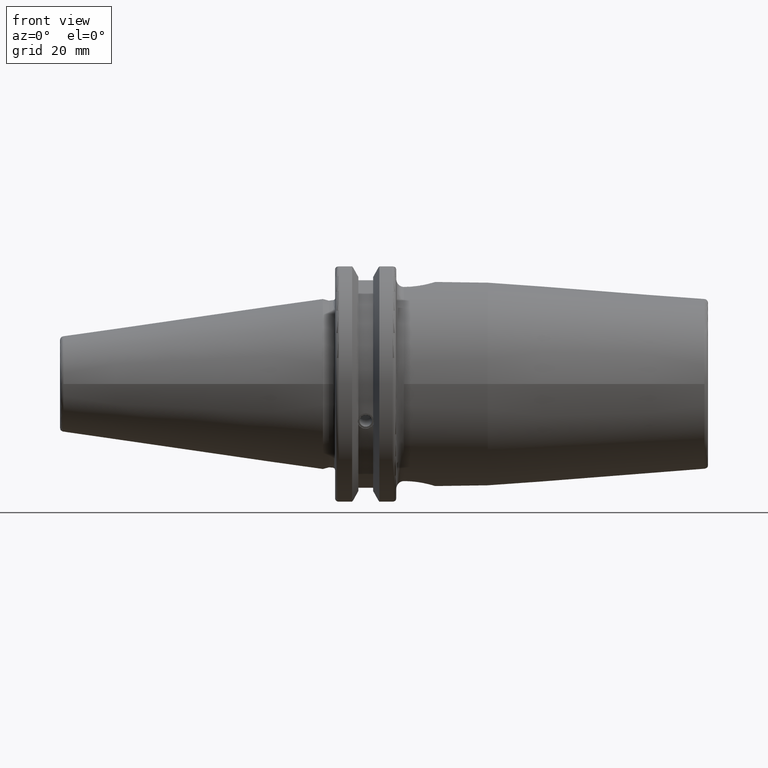
[diagram: clean part render]
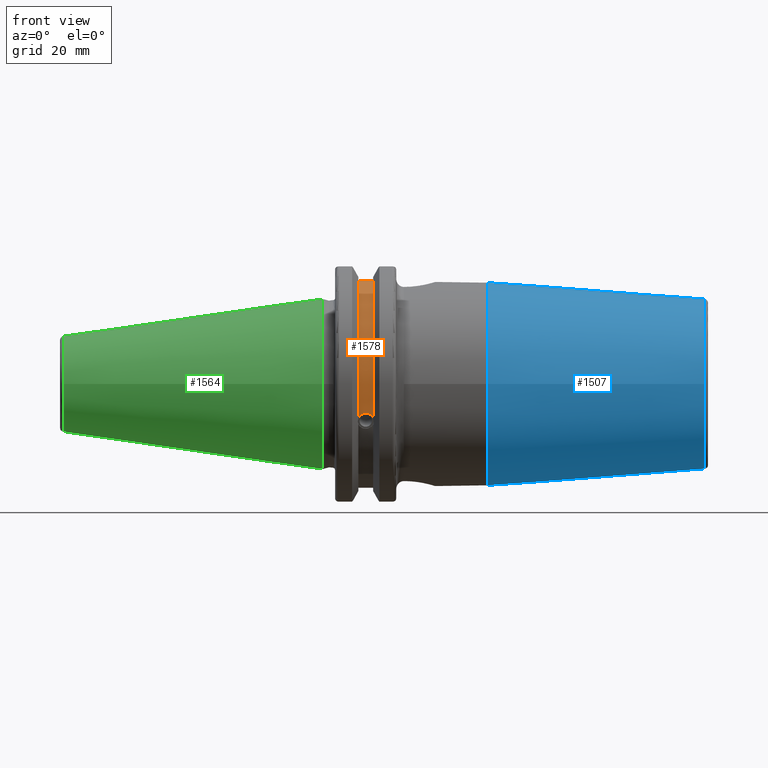
[diagram: same view with three faces highlighted in distinct colors, each labeled with its STEP entity id]
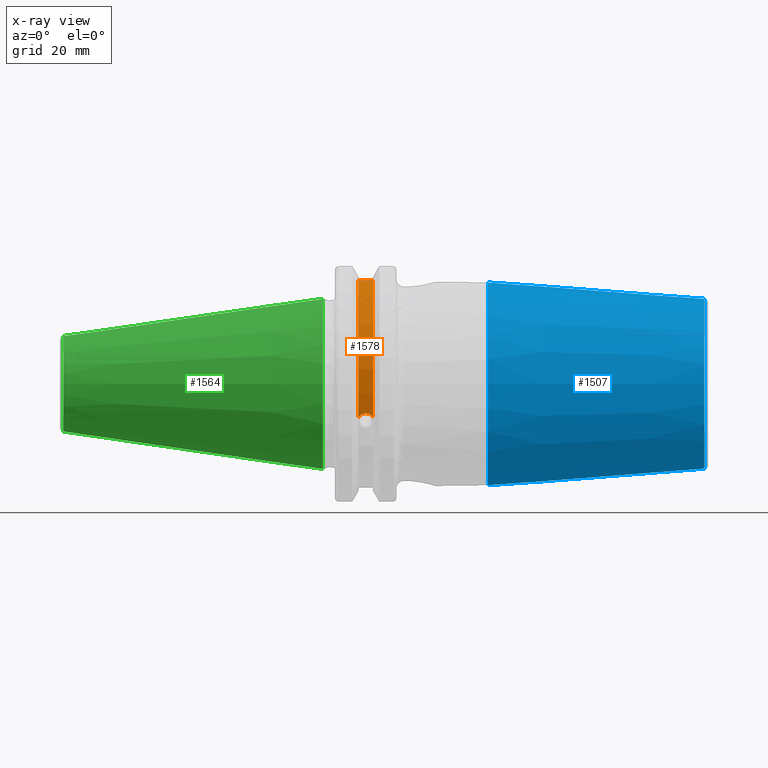
[diagram: x-ray of the same camera — body ghosted, the three highlighted faces saturated]
A machine part, front view with three faces highlighted in distinct colors.
The next image is the same camera in x-ray (body ghosted, the three faces saturated) — at least one of them is partly hidden behind the body in this view.
Their STEP definitions:

[orange] entity #1578 — the highlighted cylindrical surface (partial cylindrical patch) has radius 28.15 mm, axis along (1, 0, 0).
#196=FACE_OUTER_BOUND('',#296,.T.);
#296=EDGE_LOOP('',(#1419,#1420,#1421,#1422));
#379=CIRCLE('',#1777,28.15);
#380=CIRCLE('',#1778,28.15);
#446=LINE('',#2957,#532);
#532=VECTOR('',#2110,10.);
#574=B_SPLINE_CURVE_WITH_KNOTS('',3,(#2552,#2553,#2554,#2555,#2556,#2557,
#2558,#2559,#2560,#2561,#2562,#2563,#2564,#2565),.UNSPECIFIED.,.F.,.F.,
(4,2,2,2,2,2,4),(0.401639126382403,0.474814416953736,0.553950208498303,
0.63308600004287,0.712221791587437,0.791357583132004,0.864532873703336),
 .UNSPECIFIED.);
#651=VERTEX_POINT('',#2549);
#652=VERTEX_POINT('',#2551);
#731=VERTEX_POINT('',#2954);
#732=VERTEX_POINT('',#2956);
#828=EDGE_CURVE('',#652,#651,#574,.T.);
#939=EDGE_CURVE('',#732,#731,#446,.T.);
#986=EDGE_CURVE('',#732,#651,#379,.T.);
#987=EDGE_CURVE('',#731,#652,#380,.T.);
#1419=ORIENTED_EDGE('',*,*,#828,.T.);
#1420=ORIENTED_EDGE('',*,*,#986,.F.);
#1421=ORIENTED_EDGE('',*,*,#939,.T.);
#1422=ORIENTED_EDGE('',*,*,#987,.T.);
#1500=CYLINDRICAL_SURFACE('',#1776,28.15);
#1578=ADVANCED_FACE('',(#196),#1500,.T.);
#1776=AXIS2_PLACEMENT_3D('',#3097,#2206,#2207);
#1777=AXIS2_PLACEMENT_3D('',#3098,#2208,#2209);
#1778=AXIS2_PLACEMENT_3D('',#3099,#2210,#2211);
#2110=DIRECTION('',(-1.,0.,0.));
#2206=DIRECTION('center_axis',(1.,0.,0.));
#2207=DIRECTION('ref_axis',(0.,-0.887654187951484,0.46051063246378));
#2208=DIRECTION('center_axis',(1.,0.,0.));
#2209=DIRECTION('ref_axis',(0.,0.,-1.));
#2210=DIRECTION('center_axis',(1.,0.,0.));
#2211=DIRECTION('ref_axis',(0.,0.,-1.));
#2549=CARTESIAN_POINT('',(13.0491,-26.734714844398,-8.81348524641211));
#2551=CARTESIAN_POINT('',(9.2191,-26.734714844398,-8.81348524641212));
#2552=CARTESIAN_POINT('Ctrl Pts',(9.2191,-26.734714844398,-8.81348524641212));
#2553=CARTESIAN_POINT('Ctrl Pts',(9.32533057097183,-26.8086519721597,-8.58920529678291));
#2554=CARTESIAN_POINT('Ctrl Pts',(9.47682013770509,-26.8729987454904,-8.38416529997369));
#2555=CARTESIAN_POINT('Ctrl Pts',(9.83557062657411,-26.9778908791383,-8.04056861831091));
#2556=CARTESIAN_POINT('Ctrl Pts',(10.0716450112988,-27.0233016799732,-7.88512567185902));
#2557=CARTESIAN_POINT('Ctrl Pts',(10.5890125426388,-27.0826966800569,-7.6786444840004));
#2558=CARTESIAN_POINT('Ctrl Pts',(10.8703140281848,-27.0968804077294,-7.62768458768512));
#2559=CARTESIAN_POINT('Ctrl Pts',(11.3978859718152,-27.0968804077294,-7.62768458768512));
#2560=CARTESIAN_POINT('Ctrl Pts',(11.6791874573612,-27.0826966800569,-7.6786444840004));
#2561=CARTESIAN_POINT('Ctrl Pts',(12.1965549887012,-27.0233016799732,-7.88512567185902));
#2562=CARTESIAN_POINT('Ctrl Pts',(12.4326293734259,-26.9778908791383,-8.04056861831091));
#2563=CARTESIAN_POINT('Ctrl Pts',(12.7913798622949,-26.8729987454904,-8.38416529997369));
#2564=CARTESIAN_POINT('Ctrl Pts',(12.9428694290282,-26.8086519721597,-8.5892052967829));
#2565=CARTESIAN_POINT('Ctrl Pts',(13.0491,-26.734714844398,-8.81348524641211));
#2954=CARTESIAN_POINT('',(9.2191,-8.19,26.932255754021));
#2956=CARTESIAN_POINT('',(13.0491,-8.19,26.932255754021));
#2957=CARTESIAN_POINT('',(11.1341,-8.19,26.932255754021));
#3097=CARTESIAN_POINT('Origin',(11.1341,0.,0.));
#3098=CARTESIAN_POINT('Origin',(13.0491,0.,0.));
#3099=CARTESIAN_POINT('Origin',(9.2191,0.,0.));

[blue] entity #1507 — the highlighted conical surface has half-angle 4.5 deg.
#98=CONICAL_SURFACE('',#1628,24.25,0.0785398163397448);
#125=FACE_OUTER_BOUND('',#212,.T.);
#212=EDGE_LOOP('',(#1028,#1029,#1030,#1031,#1032));
#310=CIRCLE('',#1615,26.5);
#318=CIRCLE('',#1626,22.0725268420749);
#319=CIRCLE('',#1627,22.0725268420749);
#392=LINE('',#2361,#478);
#478=VECTOR('',#1836,24.25);
#605=VERTEX_POINT('',#2281);
#618=VERTEX_POINT('',#2355);
#619=VERTEX_POINT('',#2357);
#763=EDGE_CURVE('',#605,#605,#310,.T.);
#781=EDGE_CURVE('',#618,#619,#318,.T.);
#782=EDGE_CURVE('',#619,#618,#319,.T.);
#783=EDGE_CURVE('',#619,#605,#392,.T.);
#1028=ORIENTED_EDGE('',*,*,#782,.F.);
#1029=ORIENTED_EDGE('',*,*,#783,.T.);
#1030=ORIENTED_EDGE('',*,*,#763,.T.);
#1031=ORIENTED_EDGE('',*,*,#783,.F.);
#1032=ORIENTED_EDGE('',*,*,#781,.F.);
#1507=ADVANCED_FACE('',(#125),#98,.T.);
#1615=AXIS2_PLACEMENT_3D('',#2282,#1803,#1804);
#1626=AXIS2_PLACEMENT_3D('',#2358,#1830,#1831);
#1627=AXIS2_PLACEMENT_3D('',#2359,#1832,#1833);
#1628=AXIS2_PLACEMENT_3D('',#2360,#1834,#1835);
#1803=DIRECTION('center_axis',(1.,0.,0.));
#1804=DIRECTION('ref_axis',(0.,0.,-1.));
#1830=DIRECTION('center_axis',(1.,0.,0.));
#1831=DIRECTION('ref_axis',(0.,-1.,3.06161699786838E-17));
#1832=DIRECTION('center_axis',(1.,0.,0.));
#1833=DIRECTION('ref_axis',(0.,-1.,3.06161699786838E-17));
#1834=DIRECTION('center_axis',(-1.,0.,0.));
#1835=DIRECTION('ref_axis',(0.,1.,0.));
#1836=DIRECTION('',(-0.996917333733128,-0.0784590957278449,-9.60846804471011E-18));
#2281=CARTESIAN_POINT('',(42.8220786872138,-26.5,-3.24531401774049E-15));
#2282=CARTESIAN_POINT('Origin',(42.8220786872138,0.,0.));
#2355=CARTESIAN_POINT('',(99.0784590957279,-2.70310493462411E-15,22.0725268420749));
#2357=CARTESIAN_POINT('',(99.0784590957279,-22.0725268420749,-2.70310493462411E-15));
#2358=CARTESIAN_POINT('Origin',(99.0784590957279,0.,-3.37888116828014E-15));
#2359=CARTESIAN_POINT('Origin',(99.0784590957279,0.,-3.37888116828014E-15));
#2360=CARTESIAN_POINT('Origin',(71.4110393436069,0.,0.));
#2361=CARTESIAN_POINT('',(71.4110393436069,-24.25,-2.96976848793233E-15));

[green] entity #1564 — the highlighted conical surface has half-angle 8.297 deg.
#105=CONICAL_SURFACE('',#1756,17.2484375,0.144812498238939);
#182=FACE_OUTER_BOUND('',#282,.T.);
#282=EDGE_LOOP('',(#1352,#1353,#1354,#1355,#1356));
#368=CIRCLE('',#1750,12.3966635780937);
#369=CIRCLE('',#1751,12.3966635780937);
#373=CIRCLE('',#1757,22.225);
#455=LINE('',#3052,#541);
#541=VECTOR('',#2157,17.2484375);
#742=VERTEX_POINT('',#3039);
#743=VERTEX_POINT('',#3040);
#746=VERTEX_POINT('',#3050);
#960=EDGE_CURVE('',#742,#743,#368,.T.);
#961=EDGE_CURVE('',#743,#742,#369,.T.);
#965=EDGE_CURVE('',#746,#746,#373,.T.);
#966=EDGE_CURVE('',#746,#743,#455,.T.);
#1352=ORIENTED_EDGE('',*,*,#965,.F.);
#1353=ORIENTED_EDGE('',*,*,#966,.T.);
#1354=ORIENTED_EDGE('',*,*,#960,.F.);
#1355=ORIENTED_EDGE('',*,*,#961,.F.);
#1356=ORIENTED_EDGE('',*,*,#966,.F.);
#1564=ADVANCED_FACE('',(#182),#105,.T.);
#1750=AXIS2_PLACEMENT_3D('',#3041,#2141,#2142);
#1751=AXIS2_PLACEMENT_3D('',#3042,#2143,#2144);
#1756=AXIS2_PLACEMENT_3D('',#3049,#2153,#2154);
#1757=AXIS2_PLACEMENT_3D('',#3051,#2155,#2156);
#2141=DIRECTION('center_axis',(-1.,0.,0.));
#2142=DIRECTION('ref_axis',(0.,-1.,3.06161699786838E-17));
#2143=DIRECTION('center_axis',(-1.,0.,0.));
#2144=DIRECTION('ref_axis',(0.,-1.,3.06161699786838E-17));
#2153=DIRECTION('center_axis',(1.,0.,0.));
#2154=DIRECTION('ref_axis',(0.,1.,0.));
#2155=DIRECTION('center_axis',(1.,0.,0.));
#2156=DIRECTION('ref_axis',(0.,0.,-1.));
#2157=DIRECTION('',(-0.989532981063282,0.144306893071729,1.76724974695192E-17));
#3039=CARTESIAN_POINT('',(-67.3943068930717,-1.5181534371019E-15,12.3966635780937));
#3040=CARTESIAN_POINT('',(-67.3943068930718,-12.3966635780937,-1.5181534371019E-15));
#3041=CARTESIAN_POINT('Origin',(-67.3943068930717,0.,-1.89769179637738E-15));
#3042=CARTESIAN_POINT('Origin',(-67.3943068930717,0.,-1.89769179637738E-15));
#3049=CARTESIAN_POINT('Origin',(-34.125,0.,0.));
#3050=CARTESIAN_POINT('',(0.,-22.225,-2.72177751110499E-15));
#3051=CARTESIAN_POINT('Origin',(0.,0.,0.));
#3052=CARTESIAN_POINT('',(-34.125,-17.2484375,-2.11232437746682E-15));